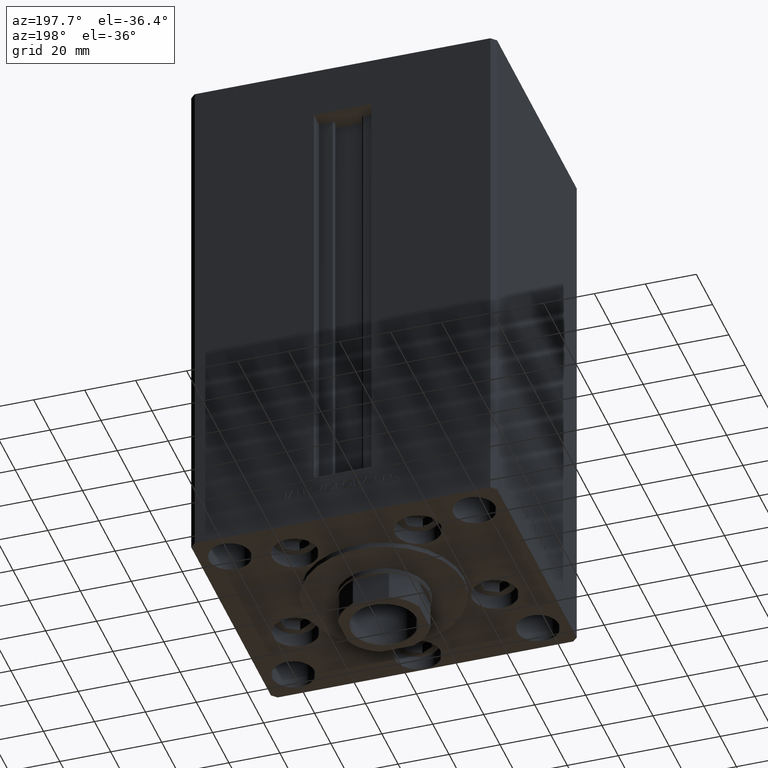
[diagram: clean part render]
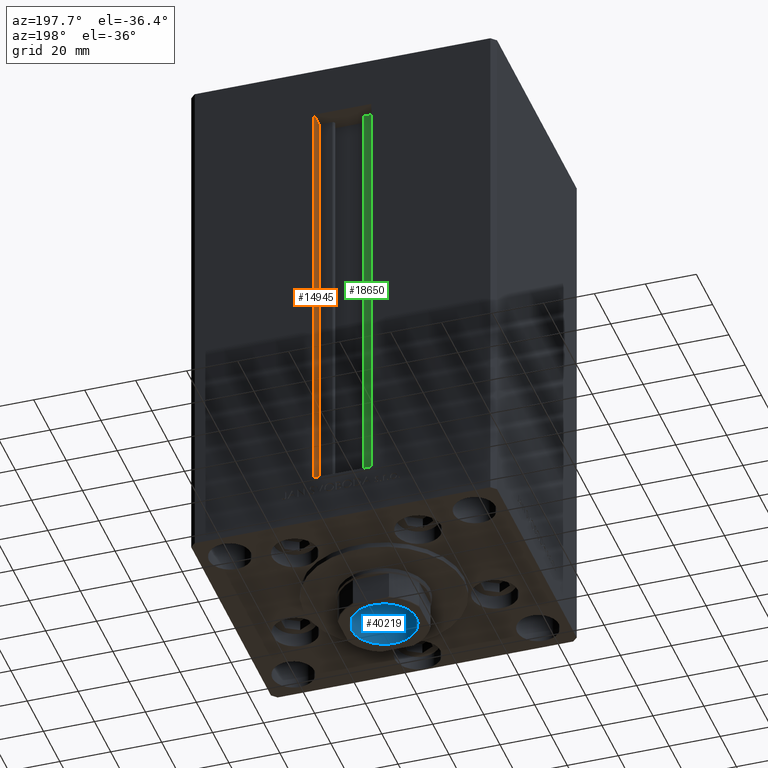
[diagram: same view with three faces highlighted in distinct colors, each labeled with its STEP entity id]
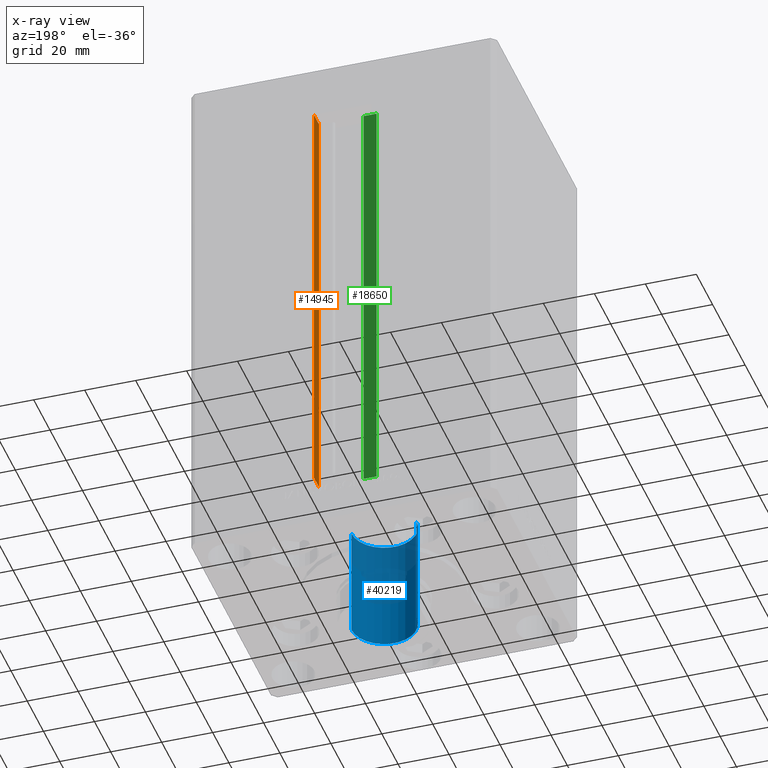
[diagram: x-ray of the same camera — body ghosted, the three highlighted faces saturated]
A machine part, auxiliary view with three faces highlighted in distinct colors.
The next image is the same camera in x-ray (body ghosted, the three faces saturated) — at least one of them is partly hidden behind the body in this view.
Their STEP definitions:

[orange] entity #14945 — the highlighted planar face has unit normal (1, 0, 0).
#988 = ORIENTED_EDGE ( 'NONE', *, *, #42000, .F. ) ;
#2231 = CARTESIAN_POINT ( 'NONE',  ( 11.25000000000000178, 44.50000000000000000, 0.000000000000000000 ) ) ;
#3002 = ORIENTED_EDGE ( 'NONE', *, *, #36972, .T. ) ;
#4215 = ORIENTED_EDGE ( 'NONE', *, *, #38079, .F. ) ;
#4705 = VERTEX_POINT ( 'NONE', #44140 ) ;
#6119 = CARTESIAN_POINT ( 'NONE',  ( 11.25000000000000178, 44.50000000000000000, 0.000000000000000000 ) ) ;
#7433 = LINE ( 'NONE', #19611, #16422 ) ;
#8359 = CARTESIAN_POINT ( 'NONE',  ( 11.25000000000000178, 44.50000000000000000, 0.000000000000000000 ) ) ;
#9403 = CARTESIAN_POINT ( 'NONE',  ( 11.25000000000000178, 51.00000000000000000, 0.000000000000000000 ) ) ;
#10374 = DIRECTION ( 'NONE',  ( -0.000000000000000000, -0.000000000000000000, 1.000000000000000000 ) ) ;
#11198 = AXIS2_PLACEMENT_3D ( 'NONE', #6119, #28739, #43904 ) ;
#14822 = LINE ( 'NONE', #29755, #29311 ) ;
#14945 = ADVANCED_FACE ( 'NONE', ( #20550 ), #27997, .F. ) ;
#16058 = LINE ( 'NONE', #8359, #37902 ) ;
#16422 = VECTOR ( 'NONE', #27311, 1000.000000000000000 ) ;
#17616 = VERTEX_POINT ( 'NONE', #45508 ) ;
#19091 = EDGE_LOOP ( 'NONE', ( #988, #4215, #3002, #21848 ) ) ;
#19309 = DIRECTION ( 'NONE',  ( 0.000000000000000000, 1.000000000000000000, 0.000000000000000000 ) ) ;
#19611 = CARTESIAN_POINT ( 'NONE',  ( 11.25000000000000178, 44.50000000000000000, 0.000000000000000000 ) ) ;
#20550 = FACE_OUTER_BOUND ( 'NONE', #19091, .T. ) ;
#21848 = ORIENTED_EDGE ( 'NONE', *, *, #41967, .F. ) ;
#22063 = LINE ( 'NONE', #45405, #46759 ) ;
#27311 = DIRECTION ( 'NONE',  ( -0.000000000000000000, -0.000000000000000000, 1.000000000000000000 ) ) ;
#27997 = PLANE ( 'NONE',  #11198 ) ;
#28739 = DIRECTION ( 'NONE',  ( 1.000000000000000000, -0.000000000000000000, 0.000000000000000000 ) ) ;
#29311 = VECTOR ( 'NONE', #33004, 1000.000000000000000 ) ;
#29755 = CARTESIAN_POINT ( 'NONE',  ( 11.25000000000000178, 0.000000000000000000, 168.5000000000000000 ) ) ;
#33004 = DIRECTION ( 'NONE',  ( -0.000000000000000000, -1.000000000000000000, 0.000000000000000000 ) ) ;
#36972 = EDGE_CURVE ( 'NONE', #47650, #4705, #7433, .T. ) ;
#37902 = VECTOR ( 'NONE', #19309, 1000.000000000000000 ) ;
#38079 = EDGE_CURVE ( 'NONE', #47650, #44520, #16058, .T. ) ;
#41967 = EDGE_CURVE ( 'NONE', #17616, #4705, #14822, .T. ) ;
#42000 = EDGE_CURVE ( 'NONE', #44520, #17616, #22063, .T. ) ;
#43904 = DIRECTION ( 'NONE',  ( 0.000000000000000000, 0.000000000000000000, -1.000000000000000000 ) ) ;
#44140 = CARTESIAN_POINT ( 'NONE',  ( 11.25000000000000178, 44.50000000000000000, 168.5000000000000000 ) ) ;
#44520 = VERTEX_POINT ( 'NONE', #9403 ) ;
#45405 = CARTESIAN_POINT ( 'NONE',  ( 11.25000000000000178, 51.00000000000000000, 0.000000000000000000 ) ) ;
#45508 = CARTESIAN_POINT ( 'NONE',  ( 11.24999999999999467, 51.00000000000000000, 168.5000000000000000 ) ) ;
#46759 = VECTOR ( 'NONE', #10374, 1000.000000000000000 ) ;
#47650 = VERTEX_POINT ( 'NONE', #2231 ) ;

[blue] entity #40219 — the highlighted cylindrical surface (edge-blend (fillet) strip) has radius 12.75 mm, axis along (0, 0, -1).
#1488 = EDGE_CURVE ( 'NONE', #15282, #38476, #32699, .T. ) ;
#2068 = CARTESIAN_POINT ( 'NONE',  ( 12.74999999999999467, 0.000000000000000000, 188.9499999999999886 ) ) ;
#3037 = DIRECTION ( 'NONE',  ( 0.000000000000000000, 0.000000000000000000, 1.000000000000000000 ) ) ;
#6691 = CARTESIAN_POINT ( 'NONE',  ( 0.000000000000000000, 0.000000000000000000, 189.2500000000000000 ) ) ;
#7828 = VECTOR ( 'NONE', #35237, 1000.000000000000000 ) ;
#9107 = CARTESIAN_POINT ( 'NONE',  ( -12.74999999999999467, 1.561424668912874519E-15, 189.2500000000000000 ) ) ;
#9323 = AXIS2_PLACEMENT_3D ( 'NONE', #38176, #45627, #32431 ) ;
#9732 = EDGE_CURVE ( 'NONE', #26114, #15282, #24424, .T. ) ;
#11457 = CARTESIAN_POINT ( 'NONE',  ( -12.74999999999999112, 1.561424668912874125E-15, 144.2500000000000000 ) ) ;
#11717 = DIRECTION ( 'NONE',  ( 1.000000000000000000, 0.000000000000000000, 0.000000000000000000 ) ) ;
#14118 = ORIENTED_EDGE ( 'NONE', *, *, #9732, .F. ) ;
#14147 = CYLINDRICAL_SURFACE ( 'NONE', #21302, 12.74999999999999467 ) ;
#15282 = VERTEX_POINT ( 'NONE', #43846 ) ;
#17399 = DIRECTION ( 'NONE',  ( -0.000000000000000000, -0.000000000000000000, 1.000000000000000000 ) ) ;
#17830 = VECTOR ( 'NONE', #28470, 1000.000000000000000 ) ;
#18396 = CIRCLE ( 'NONE', #31104, 12.74999999999999467 ) ;
#19286 = EDGE_CURVE ( 'NONE', #35208, #38476, #18396, .T. ) ;
#21302 = AXIS2_PLACEMENT_3D ( 'NONE', #6691, #17399, #25360 ) ;
#24424 = CIRCLE ( 'NONE', #9323, 12.74999999999999112 ) ;
#25360 = DIRECTION ( 'NONE',  ( 1.000000000000000000, 0.000000000000000000, 0.000000000000000000 ) ) ;
#26114 = VERTEX_POINT ( 'NONE', #11457 ) ;
#26676 = CARTESIAN_POINT ( 'NONE',  ( -12.74999999999999467, 1.561424668912874519E-15, 188.9499999999999886 ) ) ;
#27100 = ORIENTED_EDGE ( 'NONE', *, *, #1488, .F. ) ;
#27770 = LINE ( 'NONE', #9107, #7828 ) ;
#28470 = DIRECTION ( 'NONE',  ( -0.000000000000000000, -0.000000000000000000, 1.000000000000000000 ) ) ;
#29209 = CARTESIAN_POINT ( 'NONE',  ( 12.74999999999999467, 0.000000000000000000, 189.2500000000000000 ) ) ;
#31104 = AXIS2_PLACEMENT_3D ( 'NONE', #33375, #3037, #11717 ) ;
#32431 = DIRECTION ( 'NONE',  ( 1.000000000000000000, 0.000000000000000000, 0.000000000000000000 ) ) ;
#32699 = LINE ( 'NONE', #29209, #17830 ) ;
#33375 = CARTESIAN_POINT ( 'NONE',  ( 0.000000000000000000, 0.000000000000000000, 188.9499999999999886 ) ) ;
#35208 = VERTEX_POINT ( 'NONE', #26676 ) ;
#35237 = DIRECTION ( 'NONE',  ( -0.000000000000000000, -0.000000000000000000, 1.000000000000000000 ) ) ;
#38176 = CARTESIAN_POINT ( 'NONE',  ( 0.000000000000000000, 0.000000000000000000, 144.2500000000000000 ) ) ;
#38476 = VERTEX_POINT ( 'NONE', #2068 ) ;
#40219 = ADVANCED_FACE ( 'NONE', ( #40759 ), #14147, .F. ) ;
#40346 = EDGE_LOOP ( 'NONE', ( #14118, #43771, #44020, #27100 ) ) ;
#40759 = FACE_OUTER_BOUND ( 'NONE', #40346, .T. ) ;
#43771 = ORIENTED_EDGE ( 'NONE', *, *, #45481, .T. ) ;
#43846 = CARTESIAN_POINT ( 'NONE',  ( 12.74999999999999112, 0.000000000000000000, 144.2500000000000000 ) ) ;
#44020 = ORIENTED_EDGE ( 'NONE', *, *, #19286, .T. ) ;
#45481 = EDGE_CURVE ( 'NONE', #26114, #35208, #27770, .T. ) ;
#45627 = DIRECTION ( 'NONE',  ( -0.000000000000000000, -0.000000000000000000, 1.000000000000000000 ) ) ;

[green] entity #18650 — the highlighted planar face has unit normal (0, -1, 0).
#380 = ORIENTED_EDGE ( 'NONE', *, *, #24109, .F. ) ;
#6603 = VECTOR ( 'NONE', #10876, 1000.000000000000000 ) ;
#8131 = LINE ( 'NONE', #38465, #27161 ) ;
#9895 = CARTESIAN_POINT ( 'NONE',  ( -11.25000000000000178, 44.50000000000000000, 0.000000000000000000 ) ) ;
#10648 = EDGE_LOOP ( 'NONE', ( #380, #21168, #10709, #26893 ) ) ;
#10709 = ORIENTED_EDGE ( 'NONE', *, *, #31583, .T. ) ;
#10876 = DIRECTION ( 'NONE',  ( -0.000000000000000000, -0.000000000000000000, 1.000000000000000000 ) ) ;
#14810 = VERTEX_POINT ( 'NONE', #40732 ) ;
#16651 = PLANE ( 'NONE',  #29468 ) ;
#17116 = DIRECTION ( 'NONE',  ( -0.000000000000000000, -0.000000000000000000, 1.000000000000000000 ) ) ;
#17853 = LINE ( 'NONE', #9895, #24985 ) ;
#18650 = ADVANCED_FACE ( 'NONE', ( #43491 ), #16651, .F. ) ;
#19580 = DIRECTION ( 'NONE',  ( -1.000000000000000000, 0.000000000000000000, 0.000000000000000000 ) ) ;
#20232 = EDGE_CURVE ( 'NONE', #47488, #14810, #8131, .T. ) ;
#21168 = ORIENTED_EDGE ( 'NONE', *, *, #45887, .F. ) ;
#21495 = LINE ( 'NONE', #28933, #34112 ) ;
#24109 = EDGE_CURVE ( 'NONE', #31417, #47488, #29768, .T. ) ;
#24985 = VECTOR ( 'NONE', #17116, 1000.000000000000000 ) ;
#25795 = CARTESIAN_POINT ( 'NONE',  ( -6.183333333334001480, 44.50000000000000000, 0.000000000000000000 ) ) ;
#26893 = ORIENTED_EDGE ( 'NONE', *, *, #20232, .F. ) ;
#27161 = VECTOR ( 'NONE', #19580, 1000.000000000000000 ) ;
#28933 = CARTESIAN_POINT ( 'NONE',  ( -6.183333333334001480, 44.50000000000000000, 0.000000000000000000 ) ) ;
#29468 = AXIS2_PLACEMENT_3D ( 'NONE', #32072, #35803, #47228 ) ;
#29768 = LINE ( 'NONE', #25795, #6603 ) ;
#31417 = VERTEX_POINT ( 'NONE', #31799 ) ;
#31583 = EDGE_CURVE ( 'NONE', #41635, #14810, #17853, .T. ) ;
#31799 = CARTESIAN_POINT ( 'NONE',  ( -6.183333333334001480, 44.50000000000000000, 0.000000000000000000 ) ) ;
#32072 = CARTESIAN_POINT ( 'NONE',  ( -6.183333333334001480, 44.50000000000000000, 0.000000000000000000 ) ) ;
#34112 = VECTOR ( 'NONE', #47845, 1000.000000000000000 ) ;
#35803 = DIRECTION ( 'NONE',  ( 0.000000000000000000, -1.000000000000000000, -0.000000000000000000 ) ) ;
#36833 = CARTESIAN_POINT ( 'NONE',  ( -6.183333333334001480, 44.50000000000000000, 168.5000000000000000 ) ) ;
#38465 = CARTESIAN_POINT ( 'NONE',  ( 0.000000000000000000, 44.50000000000000000, 168.5000000000000000 ) ) ;
#40732 = CARTESIAN_POINT ( 'NONE',  ( -11.25000000000000178, 44.50000000000000000, 168.5000000000000000 ) ) ;
#41635 = VERTEX_POINT ( 'NONE', #48709 ) ;
#43491 = FACE_OUTER_BOUND ( 'NONE', #10648, .T. ) ;
#45887 = EDGE_CURVE ( 'NONE', #41635, #31417, #21495, .T. ) ;
#47228 = DIRECTION ( 'NONE',  ( 0.000000000000000000, 0.000000000000000000, -1.000000000000000000 ) ) ;
#47488 = VERTEX_POINT ( 'NONE', #36833 ) ;
#47845 = DIRECTION ( 'NONE',  ( 1.000000000000000000, -0.000000000000000000, -0.000000000000000000 ) ) ;
#48709 = CARTESIAN_POINT ( 'NONE',  ( -11.25000000000000178, 44.50000000000000000, 0.000000000000000000 ) ) ;